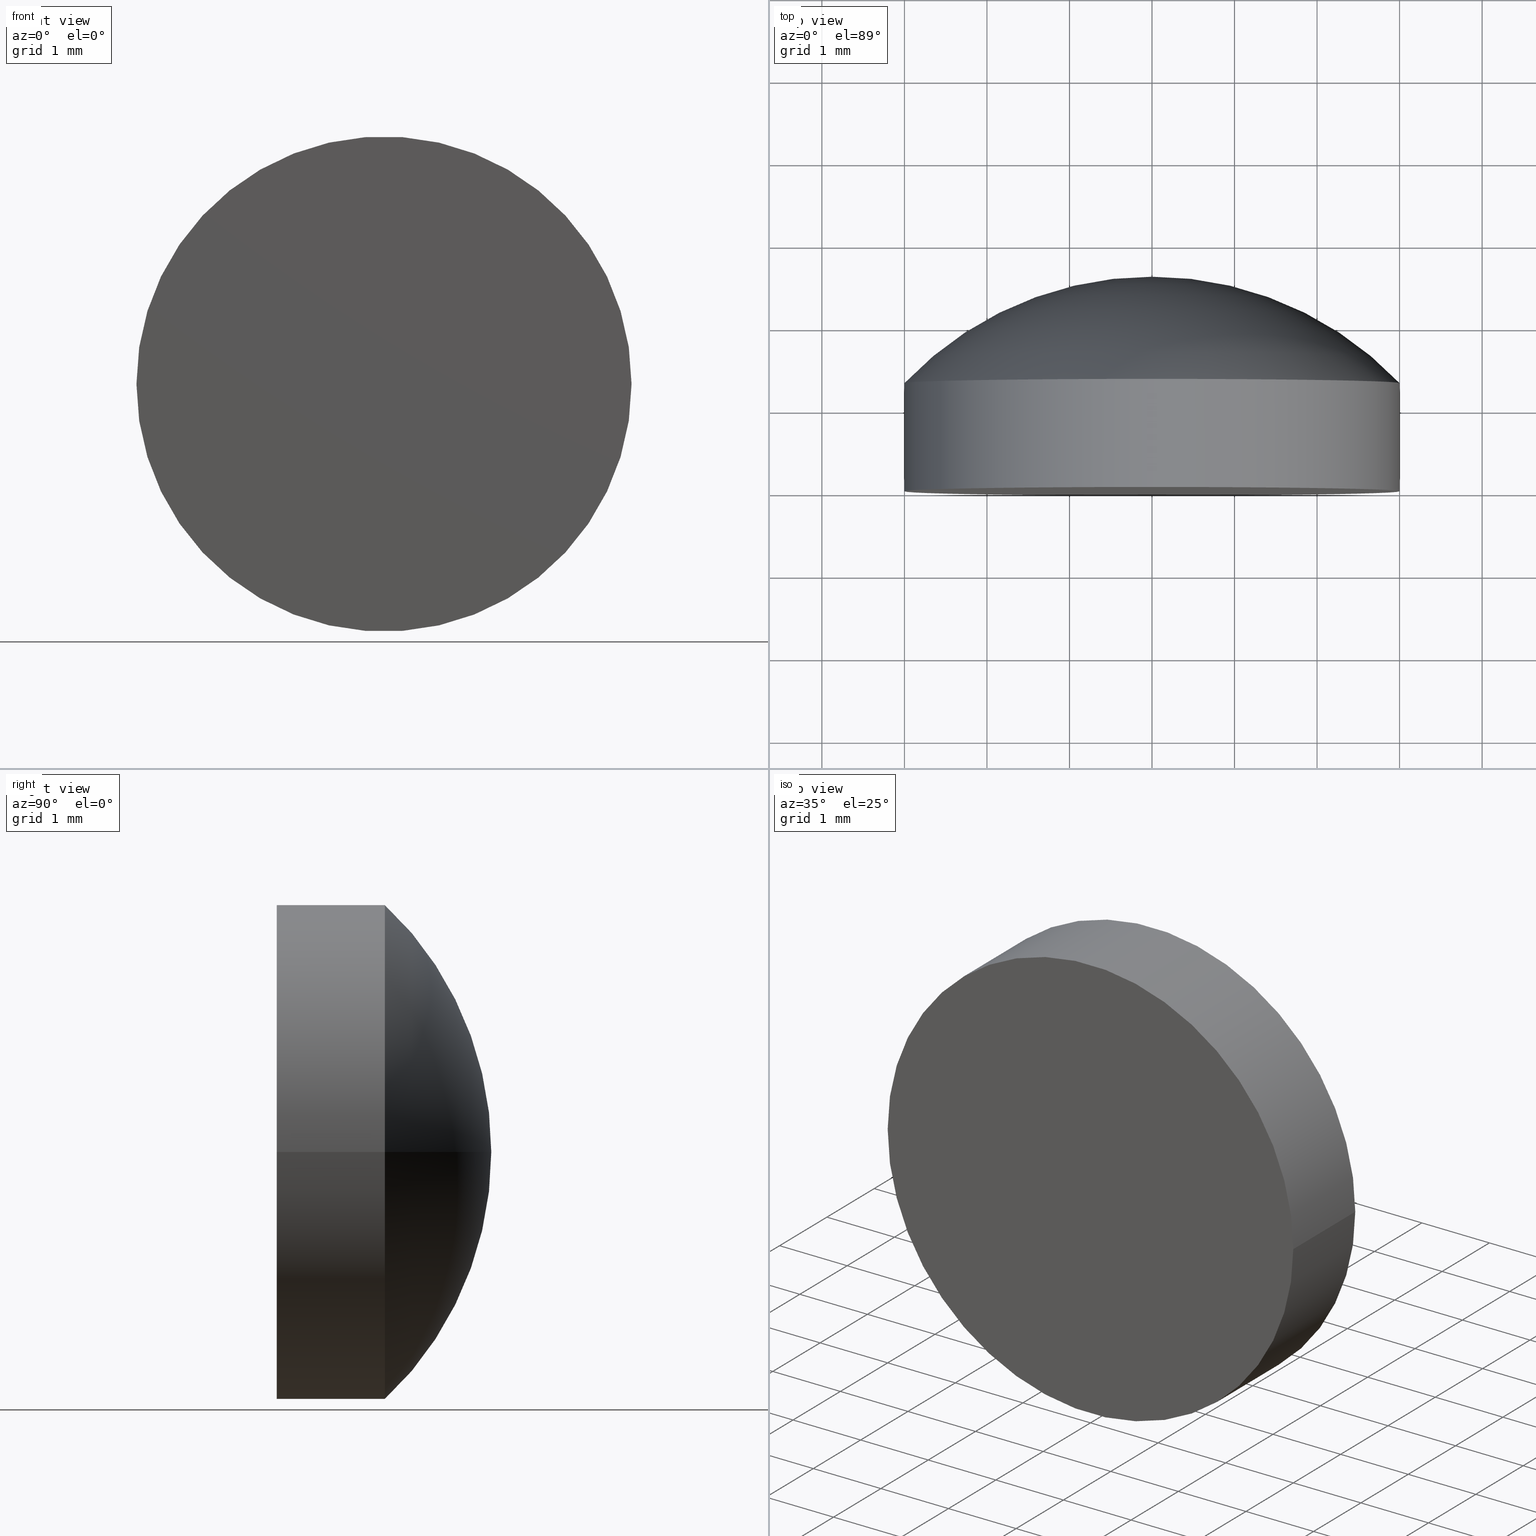
[diagram: canonical four-view strip — front | top / right | iso, engineering-drawing reading convention]
A machine part, canonical four-view strip (front | top / right | iso — engineering-drawing reading convention). The complete STEP part file that produces these views, byte-faithful:
ISO-10303-21;
HEADER;
FILE_DESCRIPTION (( 'STEP AP203' ),
    '1' );
FILE_NAME ('100559.STEP',
    '2024-05-09T03:39:49',
    ( '' ),
    ( '' ),
    'SwSTEP 2.0',
    'SolidWorks 2020',
    '' );
FILE_SCHEMA (( 'CONFIG_CONTROL_DESIGN' ));
ENDSEC;

DATA;
#1 = ORIENTED_EDGE ( 'NONE', *, *, #90, .T. ) ;
#2 = FACE_OUTER_BOUND ( 'NONE', #121, .T. ) ;
#3 = DIRECTION ( 'NONE',  ( -1.000000000000000000, 7.228014483236696555E-16, 0.000000000000000000 ) ) ;
#4 = PERSON_AND_ORGANIZATION_ROLE ( 'creator' ) ;
#5 = AXIS2_PLACEMENT_3D ( 'NONE', #107, #159, #75 ) ;
#6 = DIRECTION ( 'NONE',  ( -1.000000000000000000, 7.228014483236697541E-16, 0.000000000000000000 ) ) ;
#7 = APPLICATION_CONTEXT ( 'configuration controlled 3d designs of mechanical parts and assemblies' ) ;
#8 = COORDINATED_UNIVERSAL_TIME_OFFSET ( 8, 0, .AHEAD. ) ;
#9 = SECURITY_CLASSIFICATION ( '', '', #129 ) ;
#10 = APPLICATION_PROTOCOL_DEFINITION ( 'international standard', 'config_control_design', 1994, #7 ) ;
#11 = APPROVAL_DATE_TIME ( #176, #45 ) ;
#12 = AXIS2_PLACEMENT_3D ( 'NONE', #15, #102, #187 ) ;
#13 = EDGE_CURVE ( 'NONE', #152, #104, #35, .T. ) ;
#14 = CARTESIAN_POINT ( 'NONE',  ( 9.471465446405579432E-16, 1.309999999999997389, 0.000000000000000000 ) ) ;
#15 = CARTESIAN_POINT ( 'NONE',  ( -1.925929944387235853E-30, -2.602085213965210642E-15, 0.000000000000000000 ) ) ;
#16 = CARTESIAN_POINT ( 'NONE',  ( -2.999999999999997780, 2.600000000000001865, 0.000000000000000000 ) ) ;
#17 = FACE_OUTER_BOUND ( 'NONE', #29, .T. ) ;
#18 = DATE_TIME_ROLE ( 'creation_date' ) ;
#19 = CC_DESIGN_DATE_AND_TIME_ASSIGNMENT ( #62, #190, ( #9 ) ) ;
#20 = CARTESIAN_POINT ( 'NONE',  ( -2.999999999999998668, 1.309999999999999609, 0.000000000000000000 ) ) ;
#21 = PERSON_AND_ORGANIZATION ( #177, #61 ) ;
#22 = APPROVAL_PERSON_ORGANIZATION ( #196, #45, #146 ) ;
#23 = PERSON_AND_ORGANIZATION ( #177, #61 ) ;
#24 = MANIFOLD_SOLID_BREP ( '��ת2', #83 ) ;
#25 = SHAPE_DEFINITION_REPRESENTATION ( #130, #69 ) ;
#26 = CIRCLE ( 'NONE', #47, 4.129999999999999005 ) ;
#27 = ORIENTED_EDGE ( 'NONE', *, *, #28, .T. ) ;
#28 = EDGE_CURVE ( 'NONE', #169, #122, #67, .T. ) ;
#29 = EDGE_LOOP ( 'NONE', ( #27, #1, #42, #118 ) ) ;
#30 = CIRCLE ( 'NONE', #144, 3.000000000000000000 ) ;
#31 = CC_DESIGN_APPROVAL ( #170, ( #9 ) ) ;
#32 = PLANE ( 'NONE',  #183 ) ;
#33 = DIRECTION ( 'NONE',  ( -1.000000000000000000, 7.230126294966106081E-16, 0.000000000000000000 ) ) ;
#34 = CYLINDRICAL_SURFACE ( 'NONE', #123, 2.999999999999999556 ) ;
#35 = CIRCLE ( 'NONE', #150, 4.129999999999999005 ) ;
#36 = CARTESIAN_POINT ( 'NONE',  ( -2.999999999999999112, -4.330473254753795076E-16, 0.000000000000000000 ) ) ;
#37 = APPROVAL_ROLE ( '' ) ;
#38 = DIRECTION ( 'NONE',  ( -1.000000000000000000, 7.228014483236697541E-16, 0.000000000000000000 ) ) ;
#39 = PERSON_AND_ORGANIZATION ( #177, #61 ) ;
#40 = DIRECTION ( 'NONE',  ( 0.000000000000000000, 0.000000000000000000, 1.000000000000000000 ) ) ;
#41 = ADVANCED_FACE ( 'NONE', ( #141 ), #32, .T. ) ;
#42 = ORIENTED_EDGE ( 'NONE', *, *, #84, .F. ) ;
#43 = CARTESIAN_POINT ( 'NONE',  ( -1.106225029114116243E-15, -1.529999745421605217, 0.000000000000000000 ) ) ;
#44 = DIRECTION ( 'NONE',  ( 7.230126294966106081E-16, 1.000000000000000000, -0.000000000000000000 ) ) ;
#45 = APPROVAL ( #80, 'δָ��' ) ;
#46 = DIRECTION ( 'NONE',  ( -1.224646799147353207E-16, 8.854351024561353541E-32, 1.000000000000000000 ) ) ;
#47 = AXIS2_PLACEMENT_3D ( 'NONE', #49, #51, #175 ) ;
#48 = ADVANCED_FACE ( 'NONE', ( #2 ), #56, .T. ) ;
#49 = CARTESIAN_POINT ( 'NONE',  ( -0.001450109468708465910, -1.529999745421605217, 0.000000000000000000 ) ) ;
#50 = PERSON_AND_ORGANIZATION ( #177, #61 ) ;
#51 = DIRECTION ( 'NONE',  ( -0.000000000000000000, 0.000000000000000000, -1.000000000000000000 ) ) ;
#52 = COORDINATED_UNIVERSAL_TIME_OFFSET ( 8, 0, .AHEAD. ) ;
#53 = APPLICATION_PROTOCOL_DEFINITION ( 'international standard', 'config_control_design', 1994, #185 ) ;
#54 = PRODUCT_DEFINITION ( 'δ֪', '', #135, #191 ) ;
#55 = LOCAL_TIME ( 11, 39, 49.00000000000000000, #110 ) ;
#56 = TOROIDAL_SURFACE ( 'NONE', #174, 0.001450109468707359590, 4.129999999999999005 ) ;
#57 = ORIENTED_EDGE ( 'NONE', *, *, #158, .T. ) ;
#58 = UNCERTAINTY_MEASURE_WITH_UNIT (LENGTH_MEASURE( 1.000000000000000082E-05 ), #93, 'distance_accuracy_value', 'NONE');
#59 = ORIENTED_EDGE ( 'NONE', *, *, #28, .F. ) ;
#60 = CYLINDRICAL_SURFACE ( 'NONE', #87, 2.999999999999999556 ) ;
#61 = ORGANIZATION ( 'δָ��', 'δָ��', '' ) ;
#62 = DATE_AND_TIME ( #181, #147 ) ;
#63 = FACE_OUTER_BOUND ( 'NONE', #138, .T. ) ;
#64 = COORDINATED_UNIVERSAL_TIME_OFFSET ( 8, 0, .AHEAD. ) ;
#65 = PERSON_AND_ORGANIZATION ( #177, #61 ) ;
#66 = PERSON_AND_ORGANIZATION_ROLE ( 'design_owner' ) ;
#67 = CIRCLE ( 'NONE', #12, 2.999999999999999112 ) ;
#68 = ORIENTED_EDGE ( 'NONE', *, *, #13, .T. ) ;
#69 = ADVANCED_BREP_SHAPE_REPRESENTATION ( '100559', ( #24, #199 ), #70 ) ;
#70 =( GEOMETRIC_REPRESENTATION_CONTEXT ( 3 ) GLOBAL_UNCERTAINTY_ASSIGNED_CONTEXT ( ( #58 ) ) GLOBAL_UNIT_ASSIGNED_CONTEXT ( ( #93, #165, #108 ) ) REPRESENTATION_CONTEXT ( 'NONE', 'WORKASPACE' ) );
#71 = LOCAL_TIME ( 11, 39, 49.00000000000000000, #64 ) ;
#72 = CC_DESIGN_PERSON_AND_ORGANIZATION_ASSIGNMENT ( #39, #81, ( #54 ) ) ;
#73 = DIRECTION ( 'NONE',  ( -1.000000000000000000, 7.230126294966107067E-16, 0.000000000000000000 ) ) ;
#74 = EDGE_CURVE ( 'NONE', #122, #169, #91, .T. ) ;
#75 = DIRECTION ( 'NONE',  ( -1.000000000000000000, 7.230126294966106081E-16, 0.000000000000000000 ) ) ;
#76 = APPROVAL_DATE_TIME ( #82, #194 ) ;
#77 = CARTESIAN_POINT ( 'NONE',  ( 3.000000000000001332, 2.599999999999997868, 3.673940397442059375E-16 ) ) ;
#78 = LINE ( 'NONE', #16, #153 ) ;
#79 = APPROVAL_PERSON_ORGANIZATION ( #133, #170, #37 ) ;
#80 = APPROVAL_STATUS ( 'not_yet_approved' ) ;
#81 = PERSON_AND_ORGANIZATION_ROLE ( 'creator' ) ;
#82 = DATE_AND_TIME ( #131, #101 ) ;
#83 = CLOSED_SHELL ( 'NONE', ( #98, #111, #48, #41, #117 ) ) ;
#84 = EDGE_CURVE ( 'NONE', #184, #152, #164, .T. ) ;
#85 = ORIENTED_EDGE ( 'NONE', *, *, #84, .T. ) ;
#86 = DIRECTION ( 'NONE',  ( -7.230126294966106081E-16, -1.000000000000000000, 0.000000000000000000 ) ) ;
#87 = AXIS2_PLACEMENT_3D ( 'NONE', #145, #157, #6 ) ;
#88 = CARTESIAN_POINT ( 'NONE',  ( 0.001450109468706253487, -1.529999745421605217, 1.775871919265736998E-19 ) ) ;
#89 = DIRECTION ( 'NONE',  ( 1.000000000000000000, -7.230126294966106081E-16, 0.000000000000000000 ) ) ;
#90 = EDGE_CURVE ( 'NONE', #122, #152, #94, .T. ) ;
#91 = CIRCLE ( 'NONE', #116, 2.999999999999999112 ) ;
#92 = CARTESIAN_POINT ( 'NONE',  ( 9.471465446405579432E-16, 1.309999999999997389, 0.000000000000000000 ) ) ;
#93 =( LENGTH_UNIT ( ) NAMED_UNIT ( * ) SI_UNIT ( .MILLI., .METRE. ) );
#94 = LINE ( 'NONE', #77, #112 ) ;
#95 = CC_DESIGN_PERSON_AND_ORGANIZATION_ASSIGNMENT ( #23, #195, ( #9 ) ) ;
#96 = MECHANICAL_CONTEXT ( 'NONE', #185, 'mechanical' ) ;
#97 = APPROVAL_STATUS ( 'not_yet_approved' ) ;
#98 = ADVANCED_FACE ( 'NONE', ( #17 ), #34, .T. ) ;
#99 = PERSON_AND_ORGANIZATION ( #177, #61 ) ;
#100 = TOROIDAL_SURFACE ( 'NONE', #5, 0.001450109468707359590, 4.129999999999999005 ) ;
#101 = LOCAL_TIME ( 11, 39, 49.00000000000000000, #160 ) ;
#102 = DIRECTION ( 'NONE',  ( 7.230126294966106081E-16, 1.000000000000000000, -0.000000000000000000 ) ) ;
#103 = EDGE_LOOP ( 'NONE', ( #59, #188 ) ) ;
#104 = VERTEX_POINT ( 'NONE', #109 ) ;
#105 = LOCAL_TIME ( 11, 39, 49.00000000000000000, #52 ) ;
#106 = DIRECTION ( 'NONE',  ( 7.230126294966106081E-16, 1.000000000000000000, -0.000000000000000000 ) ) ;
#107 = CARTESIAN_POINT ( 'NONE',  ( -1.106225029114116243E-15, -1.529999745421605217, 0.000000000000000000 ) ) ;
#108 =( NAMED_UNIT ( * ) SI_UNIT ( $, .STERADIAN. ) SOLID_ANGLE_UNIT ( ) );
#109 = CARTESIAN_POINT ( 'NONE',  ( 1.879832836691187522E-15, 2.600000000000000089, 0.000000000000000000 ) ) ;
#110 = COORDINATED_UNIVERSAL_TIME_OFFSET ( 8, 0, .AHEAD. ) ;
#111 = ADVANCED_FACE ( 'NONE', ( #63 ), #100, .T. ) ;
#112 = VECTOR ( 'NONE', #173, 1000.000000000000000 ) ;
#113 = CC_DESIGN_APPROVAL ( #45, ( #135 ) ) ;
#114 = CC_DESIGN_DATE_AND_TIME_ASSIGNMENT ( #149, #18, ( #54 ) ) ;
#115 = EDGE_LOOP ( 'NONE', ( #155, #167, #140, #136 ) ) ;
#116 = AXIS2_PLACEMENT_3D ( 'NONE', #156, #44, #73 ) ;
#117 = ADVANCED_FACE ( 'NONE', ( #127 ), #60, .T. ) ;
#118 = ORIENTED_EDGE ( 'NONE', *, *, #198, .F. ) ;
#119 = ORIENTED_EDGE ( 'NONE', *, *, #158, .F. ) ;
#120 = ORIENTED_EDGE ( 'NONE', *, *, #13, .F. ) ;
#121 = EDGE_LOOP ( 'NONE', ( #120, #168, #57 ) ) ;
#122 = VERTEX_POINT ( 'NONE', #124 ) ;
#123 = AXIS2_PLACEMENT_3D ( 'NONE', #192, #142, #38 ) ;
#124 = CARTESIAN_POINT ( 'NONE',  ( 2.999999999999999112, -4.771123102455041973E-15, 3.673940397442059375E-16 ) ) ;
#125 = CALENDAR_DATE ( 2024, 9, 5 ) ;
#126 = CC_DESIGN_PERSON_AND_ORGANIZATION_ASSIGNMENT ( #21, #4, ( #135 ) ) ;
#127 = FACE_OUTER_BOUND ( 'NONE', #115, .T. ) ;
#128 = CALENDAR_DATE ( 2024, 9, 5 ) ;
#129 = SECURITY_CLASSIFICATION_LEVEL ( 'unclassified' ) ;
#130 = PRODUCT_DEFINITION_SHAPE ( 'NONE', 'NONE',  #54 ) ;
#131 = CALENDAR_DATE ( 2024, 9, 5 ) ;
#132 = CC_DESIGN_PERSON_AND_ORGANIZATION_ASSIGNMENT ( #99, #66, ( #200 ) ) ;
#133 = PERSON_AND_ORGANIZATION ( #177, #61 ) ;
#134 = CC_DESIGN_PERSON_AND_ORGANIZATION_ASSIGNMENT ( #65, #162, ( #135 ) ) ;
#135 = PRODUCT_DEFINITION_FORMATION_WITH_SPECIFIED_SOURCE ( '�κ�', '', #200, .NOT_KNOWN. ) ;
#136 = ORIENTED_EDGE ( 'NONE', *, *, #172, .F. ) ;
#137 = AXIS2_PLACEMENT_3D ( 'NONE', #14, #106, #3 ) ;
#138 = EDGE_LOOP ( 'NONE', ( #85, #68, #119 ) ) ;
#139 = CARTESIAN_POINT ( 'NONE',  ( -9.169361589858246961E-31, -1.268215964117018585E-15, 0.000000000000000000 ) ) ;
#140 = ORIENTED_EDGE ( 'NONE', *, *, #198, .T. ) ;
#141 = FACE_OUTER_BOUND ( 'NONE', #103, .T. ) ;
#142 = DIRECTION ( 'NONE',  ( 7.230126294966106081E-16, 1.000000000000000000, -0.000000000000000000 ) ) ;
#143 = CALENDAR_DATE ( 2024, 9, 5 ) ;
#144 = AXIS2_PLACEMENT_3D ( 'NONE', #92, #161, #178 ) ;
#145 = CARTESIAN_POINT ( 'NONE',  ( 1.879832836691187522E-15, 2.600000000000000089, 0.000000000000000000 ) ) ;
#146 = APPROVAL_ROLE ( '' ) ;
#147 = LOCAL_TIME ( 11, 39, 49.00000000000000000, #8 ) ;
#148 = DIRECTION ( 'NONE',  ( 7.230126294966106081E-16, 1.000000000000000000, -0.000000000000000000 ) ) ;
#149 = DATE_AND_TIME ( #143, #105 ) ;
#150 = AXIS2_PLACEMENT_3D ( 'NONE', #88, #46, #154 ) ;
#151 = APPROVAL_DATE_TIME ( #193, #170 ) ;
#152 = VERTEX_POINT ( 'NONE', #189 ) ;
#153 = VECTOR ( 'NONE', #148, 1000.000000000000000 ) ;
#154 = DIRECTION ( 'NONE',  ( 1.000000000000000000, 0.000000000000000000, 1.224646799147353207E-16 ) ) ;
#155 = ORIENTED_EDGE ( 'NONE', *, *, #90, .F. ) ;
#156 = CARTESIAN_POINT ( 'NONE',  ( -1.925929944387235853E-30, -2.602085213965210642E-15, 0.000000000000000000 ) ) ;
#157 = DIRECTION ( 'NONE',  ( 7.230126294966106081E-16, 1.000000000000000000, -0.000000000000000000 ) ) ;
#158 = EDGE_CURVE ( 'NONE', #184, #104, #26, .T. ) ;
#159 = DIRECTION ( 'NONE',  ( 7.230126294966106081E-16, 1.000000000000000000, -0.000000000000000000 ) ) ;
#160 = COORDINATED_UNIVERSAL_TIME_OFFSET ( 8, 0, .AHEAD. ) ;
#161 = DIRECTION ( 'NONE',  ( 7.230126294966106081E-16, 1.000000000000000000, -0.000000000000000000 ) ) ;
#162 = PERSON_AND_ORGANIZATION_ROLE ( 'design_supplier' ) ;
#163 = APPROVAL_ROLE ( '' ) ;
#164 = CIRCLE ( 'NONE', #137, 3.000000000000000000 ) ;
#165 =( NAMED_UNIT ( * ) PLANE_ANGLE_UNIT ( ) SI_UNIT ( $, .RADIAN. ) );
#166 = CC_DESIGN_SECURITY_CLASSIFICATION ( #9, ( #135 ) ) ;
#167 = ORIENTED_EDGE ( 'NONE', *, *, #74, .T. ) ;
#168 = ORIENTED_EDGE ( 'NONE', *, *, #172, .T. ) ;
#169 = VERTEX_POINT ( 'NONE', #36 ) ;
#170 = APPROVAL ( #197, 'δָ��' ) ;
#171 = DIRECTION ( 'NONE',  ( 7.230126294966106081E-16, 1.000000000000000000, -0.000000000000000000 ) ) ;
#172 = EDGE_CURVE ( 'NONE', #152, #184, #30, .T. ) ;
#173 = DIRECTION ( 'NONE',  ( 7.230126294966106081E-16, 1.000000000000000000, -0.000000000000000000 ) ) ;
#174 = AXIS2_PLACEMENT_3D ( 'NONE', #43, #171, #33 ) ;
#175 = DIRECTION ( 'NONE',  ( -1.000000000000000000, 0.000000000000000000, 0.000000000000000000 ) ) ;
#176 = DATE_AND_TIME ( #125, #55 ) ;
#177 = PERSON ( 'δָ��', 'δָ��', 'δָ��', ('δָ��'), ('δָ��'), ('δָ��') ) ;
#178 = DIRECTION ( 'NONE',  ( -1.000000000000000000, 7.228014483236696555E-16, 0.000000000000000000 ) ) ;
#179 = CARTESIAN_POINT ( 'NONE',  ( 0.000000000000000000, 0.000000000000000000, 0.000000000000000000 ) ) ;
#180 = DIRECTION ( 'NONE',  ( 1.000000000000000000, 0.000000000000000000, 0.000000000000000000 ) ) ;
#181 = CALENDAR_DATE ( 2024, 9, 5 ) ;
#182 = APPROVAL_PERSON_ORGANIZATION ( #50, #194, #163 ) ;
#183 = AXIS2_PLACEMENT_3D ( 'NONE', #139, #86, #89 ) ;
#184 = VERTEX_POINT ( 'NONE', #20 ) ;
#185 = APPLICATION_CONTEXT ( 'configuration controlled 3d designs of mechanical parts and assemblies' ) ;
#186 = PRODUCT_RELATED_PRODUCT_CATEGORY ( 'detail', '', ( #200 ) ) ;
#187 = DIRECTION ( 'NONE',  ( -1.000000000000000000, 7.230126294966107067E-16, 0.000000000000000000 ) ) ;
#188 = ORIENTED_EDGE ( 'NONE', *, *, #74, .F. ) ;
#189 = CARTESIAN_POINT ( 'NONE',  ( 3.000000000000000888, 1.309999999999995168, 3.673940397442059375E-16 ) ) ;
#190 = DATE_TIME_ROLE ( 'classification_date' ) ;
#191 = DESIGN_CONTEXT ( 'detailed design', #7, 'design' ) ;
#192 = CARTESIAN_POINT ( 'NONE',  ( 1.879832836691187522E-15, 2.600000000000000089, 0.000000000000000000 ) ) ;
#193 = DATE_AND_TIME ( #128, #71 ) ;
#194 = APPROVAL ( #97, 'δָ��' ) ;
#195 = PERSON_AND_ORGANIZATION_ROLE ( 'classification_officer' ) ;
#196 = PERSON_AND_ORGANIZATION ( #177, #61 ) ;
#197 = APPROVAL_STATUS ( 'not_yet_approved' ) ;
#198 = EDGE_CURVE ( 'NONE', #169, #184, #78, .T. ) ;
#199 = AXIS2_PLACEMENT_3D ( 'NONE', #179, #40, #180 ) ;
#200 = PRODUCT ( '100559', '100559', '', ( #96 ) ) ;
#201 = CC_DESIGN_APPROVAL ( #194, ( #54 ) ) ;
ENDSEC;
END-ISO-10303-21;
